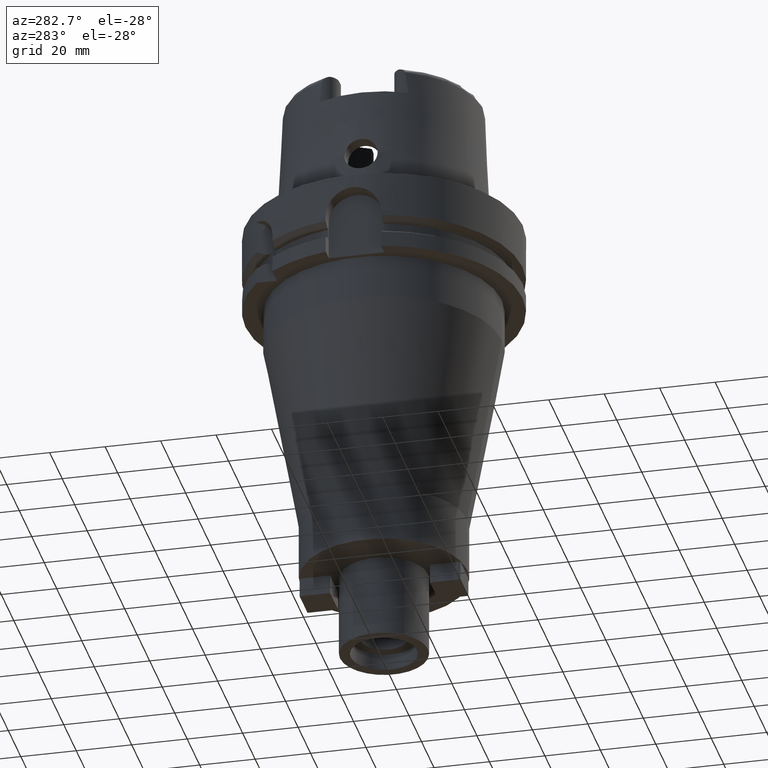
[diagram: clean part render]
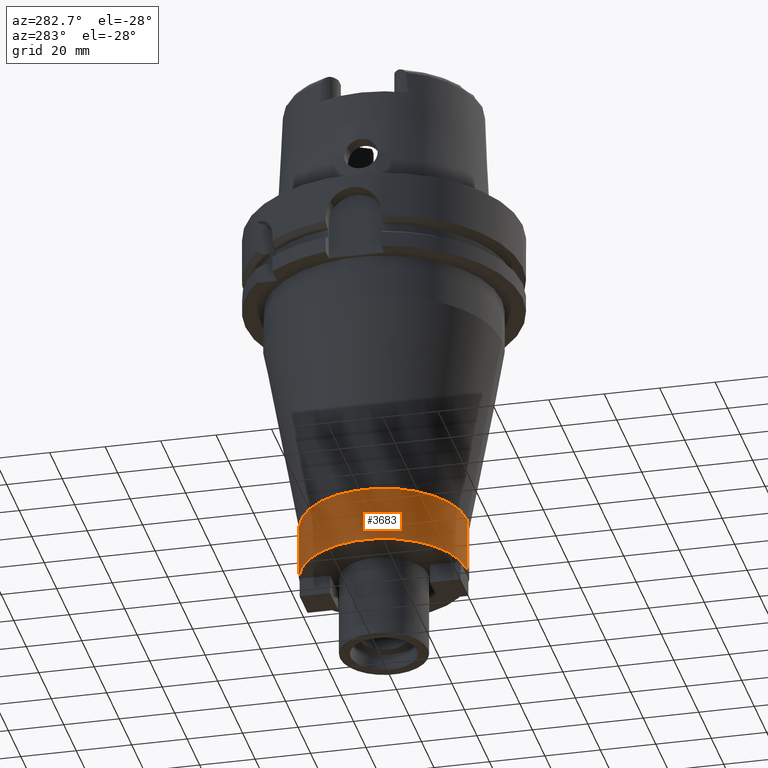
[diagram: same view with one face highlighted and labeled with its STEP entity id]
A machine part, auxiliary view. The second image highlights one B-rep face of the part: STEP entity #3683.
In plain terms, the highlighted cylindrical surface (partial cylindrical patch) has radius 30 mm, axis along (0, 0, 1).
Its self-contained STEP definition (entity closure, byte-faithful):
#1143=CARTESIAN_POINT('',(0.E0,0.E0,-1.35E2));
#1144=DIRECTION('',(0.E0,0.E0,1.E0));
#1145=DIRECTION('',(0.E0,1.E0,0.E0));
#1146=AXIS2_PLACEMENT_3D('',#1143,#1144,#1145);
#1195=DIRECTION('',(0.E0,3.357314426466E-14,-1.E0));
#1196=VECTOR('',#1195,2.E1);
#1197=CARTESIAN_POINT('',(0.E0,3.E1,-1.15E2));
#1198=LINE('',#1197,#1196);
#1202=DIRECTION('',(0.E0,-3.357314426466E-14,-1.E0));
#1203=VECTOR('',#1202,2.E1);
#1204=CARTESIAN_POINT('',(0.E0,-3.E1,-1.15E2));
#1205=LINE('',#1204,#1203);
#1224=CARTESIAN_POINT('',(0.E0,0.E0,-1.15E2));
#1225=DIRECTION('',(0.E0,0.E0,-1.E0));
#1226=DIRECTION('',(0.E0,-1.E0,0.E0));
#1227=AXIS2_PLACEMENT_3D('',#1224,#1225,#1226);
#2601=CARTESIAN_POINT('',(0.E0,-3.E1,-1.35E2));
#2602=CARTESIAN_POINT('',(0.E0,3.E1,-1.35E2));
#2603=VERTEX_POINT('',#2601);
#2604=VERTEX_POINT('',#2602);
#2621=CARTESIAN_POINT('',(0.E0,3.E1,-1.15E2));
#2622=VERTEX_POINT('',#2621);
#2623=CARTESIAN_POINT('',(0.E0,-3.E1,-1.15E2));
#2624=VERTEX_POINT('',#2623);
#3671=CARTESIAN_POINT('',(0.E0,0.E0,-1.7575E2));
#3672=DIRECTION('',(0.E0,0.E0,1.E0));
#3673=DIRECTION('',(0.E0,1.E0,0.E0));
#3674=AXIS2_PLACEMENT_3D('',#3671,#3672,#3673);
#3675=CYLINDRICAL_SURFACE('',#3674,3.E1);
#3676=ORIENTED_EDGE('',*,*,#3661,.F.);
#3678=ORIENTED_EDGE('',*,*,#3677,.F.);
#3679=ORIENTED_EDGE('',*,*,#3664,.T.);
#3680=ORIENTED_EDGE('',*,*,#3627,.F.);
#3681=EDGE_LOOP('',(#3676,#3678,#3679,#3680));
#3682=FACE_OUTER_BOUND('',#3681,.F.);
#1147=CIRCLE('',#1146,3.E1);
#1228=CIRCLE('',#1227,3.E1);
#3627=EDGE_CURVE('',#2604,#2603,#1147,.T.);
#3661=EDGE_CURVE('',#2622,#2604,#1198,.T.);
#3664=EDGE_CURVE('',#2624,#2603,#1205,.T.);
#3677=EDGE_CURVE('',#2624,#2622,#1228,.T.);
#3683=ADVANCED_FACE('',(#3682),#3675,.T.);